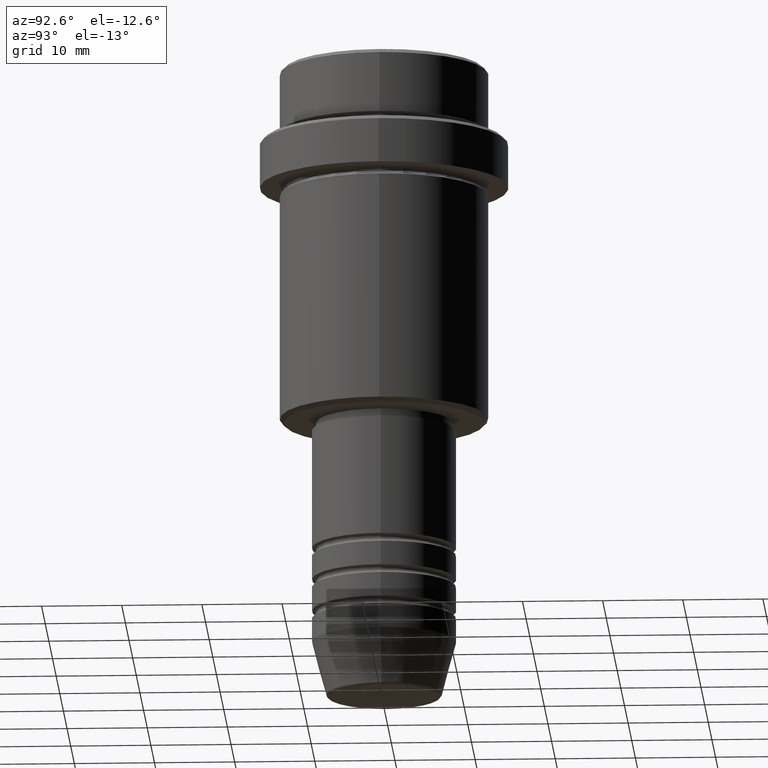
[diagram: clean part render]
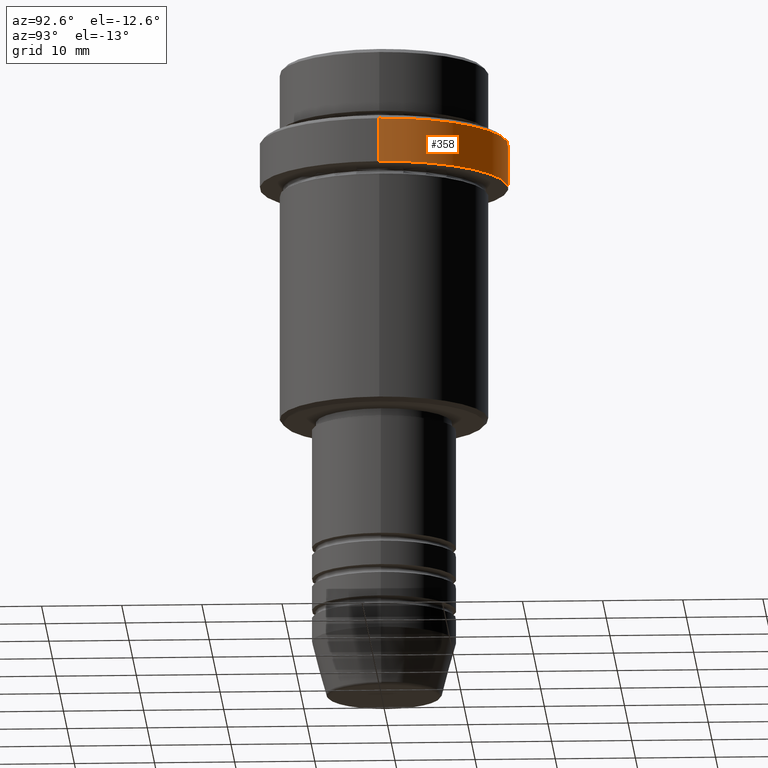
[diagram: same view with one face highlighted and labeled with its STEP entity id]
A machine part, auxiliary view. The second image highlights one B-rep face of the part: STEP entity #358.
In plain terms, the highlighted cylindrical surface (partial cylindrical patch) has radius 15.5 mm, axis along (-0, -0, 1).
Its self-contained STEP definition (entity closure, byte-faithful):
#18 = EDGE_CURVE ( 'NONE', #1056, #1285, #599, .T. ) ;
#47 = FACE_OUTER_BOUND ( 'NONE', #685, .T. ) ;
#78 = LINE ( 'NONE', #1283, #1128 ) ;
#83 = LINE ( 'NONE', #1180, #461 ) ;
#141 = CARTESIAN_POINT ( 'NONE',  ( 0.000000000000000000, 0.000000000000000000, 0.000000000000000000 ) ) ;
#144 = CIRCLE ( 'NONE', #271, 15.50000000000000000 ) ;
#154 = DIRECTION ( 'NONE',  ( 1.000000000000000000, 0.000000000000000000, 0.000000000000000000 ) ) ;
#168 = DIRECTION ( 'NONE',  ( -0.000000000000000000, -0.000000000000000000, 1.000000000000000000 ) ) ;
#221 = CARTESIAN_POINT ( 'NONE',  ( 15.50000000000000000, 0.000000000000000000, -9.499999999999984013 ) ) ;
#239 = ORIENTED_EDGE ( 'NONE', *, *, #1028, .F. ) ;
#271 = AXIS2_PLACEMENT_3D ( 'NONE', #535, #1307, #988 ) ;
#318 = VERTEX_POINT ( 'NONE', #1032 ) ;
#354 = AXIS2_PLACEMENT_3D ( 'NONE', #370, #1136, #154 ) ;
#358 = ADVANCED_FACE ( 'NONE', ( #47 ), #921, .T. ) ;
#370 = CARTESIAN_POINT ( 'NONE',  ( 0.000000000000000000, 0.000000000000000000, -15.00000000000000000 ) ) ;
#461 = VECTOR ( 'NONE', #1387, 1000.000000000000000 ) ;
#535 = CARTESIAN_POINT ( 'NONE',  ( 0.000000000000000000, 0.000000000000000000, -9.499999999999984013 ) ) ;
#599 = CIRCLE ( 'NONE', #354, 15.50000000000000000 ) ;
#614 = EDGE_CURVE ( 'NONE', #1285, #318, #83, .T. ) ;
#659 = DIRECTION ( 'NONE',  ( -0.000000000000000000, -0.000000000000000000, 1.000000000000000000 ) ) ;
#685 = EDGE_LOOP ( 'NONE', ( #1340, #1061, #892, #239 ) ) ;
#795 = VERTEX_POINT ( 'NONE', #221 ) ;
#836 = EDGE_CURVE ( 'NONE', #318, #795, #144, .T. ) ;
#892 = ORIENTED_EDGE ( 'NONE', *, *, #836, .T. ) ;
#915 = DIRECTION ( 'NONE',  ( 1.000000000000000000, 0.000000000000000000, 0.000000000000000000 ) ) ;
#921 = CYLINDRICAL_SURFACE ( 'NONE', #1239, 15.50000000000000000 ) ;
#952 = CARTESIAN_POINT ( 'NONE',  ( 15.50000000000000000, 0.000000000000000000, -15.00000000000000000 ) ) ;
#988 = DIRECTION ( 'NONE',  ( 1.000000000000000000, 0.000000000000000000, 0.000000000000000000 ) ) ;
#1028 = EDGE_CURVE ( 'NONE', #1056, #795, #78, .T. ) ;
#1032 = CARTESIAN_POINT ( 'NONE',  ( -15.50000000000000000, 1.898202538678397557E-15, -9.499999999999984013 ) ) ;
#1056 = VERTEX_POINT ( 'NONE', #952 ) ;
#1061 = ORIENTED_EDGE ( 'NONE', *, *, #614, .T. ) ;
#1128 = VECTOR ( 'NONE', #168, 1000.000000000000000 ) ;
#1136 = DIRECTION ( 'NONE',  ( -0.000000000000000000, -0.000000000000000000, 1.000000000000000000 ) ) ;
#1180 = CARTESIAN_POINT ( 'NONE',  ( -15.50000000000000000, 1.898202538678397557E-15, 0.000000000000000000 ) ) ;
#1239 = AXIS2_PLACEMENT_3D ( 'NONE', #141, #659, #915 ) ;
#1283 = CARTESIAN_POINT ( 'NONE',  ( 15.50000000000000000, 0.000000000000000000, 0.000000000000000000 ) ) ;
#1285 = VERTEX_POINT ( 'NONE', #1336 ) ;
#1307 = DIRECTION ( 'NONE',  ( 0.000000000000000000, 0.000000000000000000, -1.000000000000000000 ) ) ;
#1336 = CARTESIAN_POINT ( 'NONE',  ( -15.50000000000000000, 1.898202538678397557E-15, -15.00000000000000000 ) ) ;
#1340 = ORIENTED_EDGE ( 'NONE', *, *, #18, .T. ) ;
#1387 = DIRECTION ( 'NONE',  ( -0.000000000000000000, -0.000000000000000000, 1.000000000000000000 ) ) ;